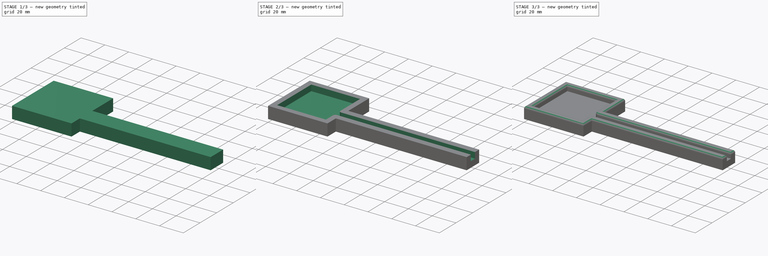
[diagram: build sequence overview — one tinted view per stage of 3, left to right]
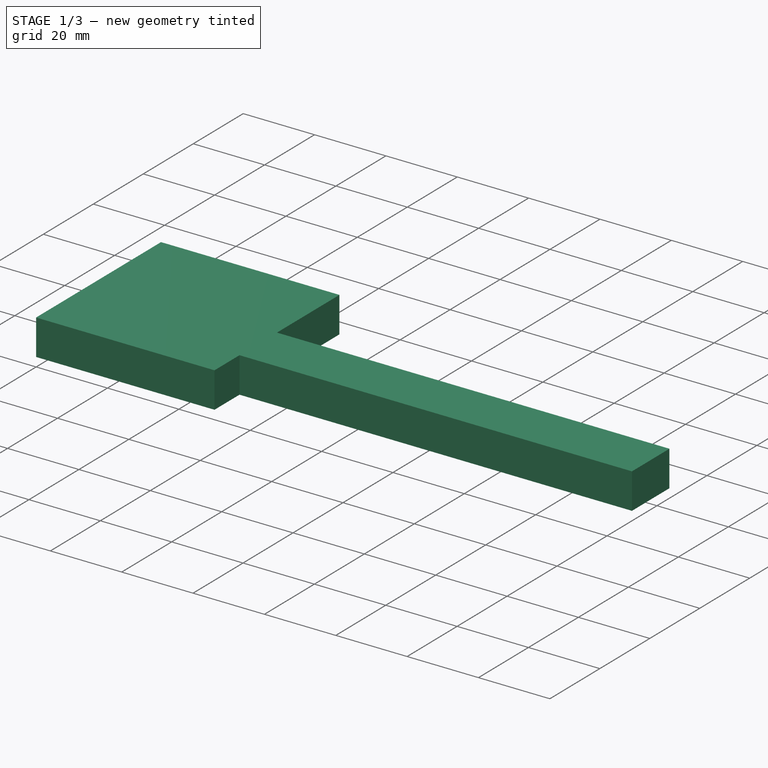
[diagram: stage 1 of 3 — iso view after this stage's code; geometry added in this stage tinted green]
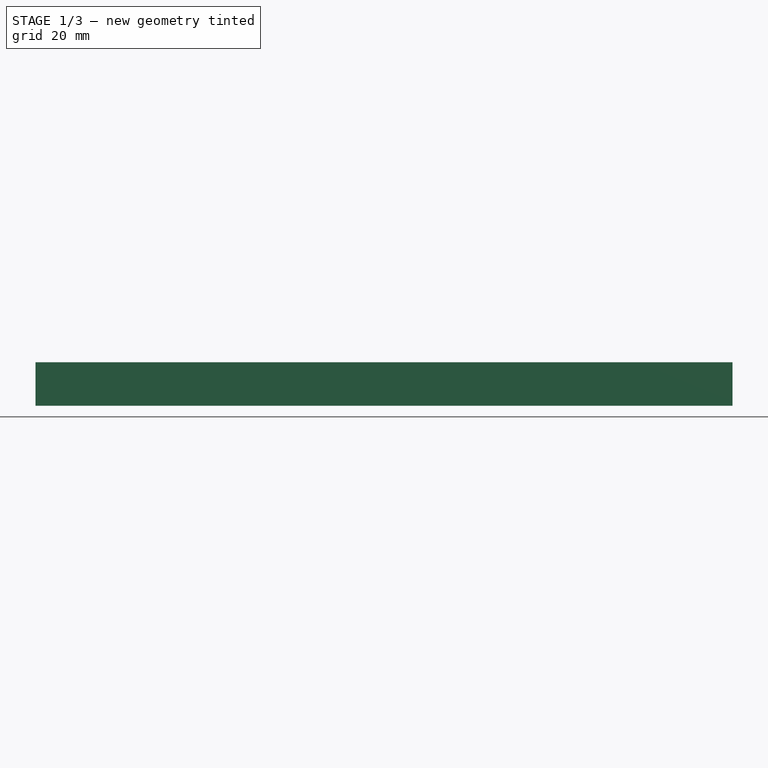
[diagram: stage 1 of 3 — front view after this stage's code; geometry added in this stage tinted green]
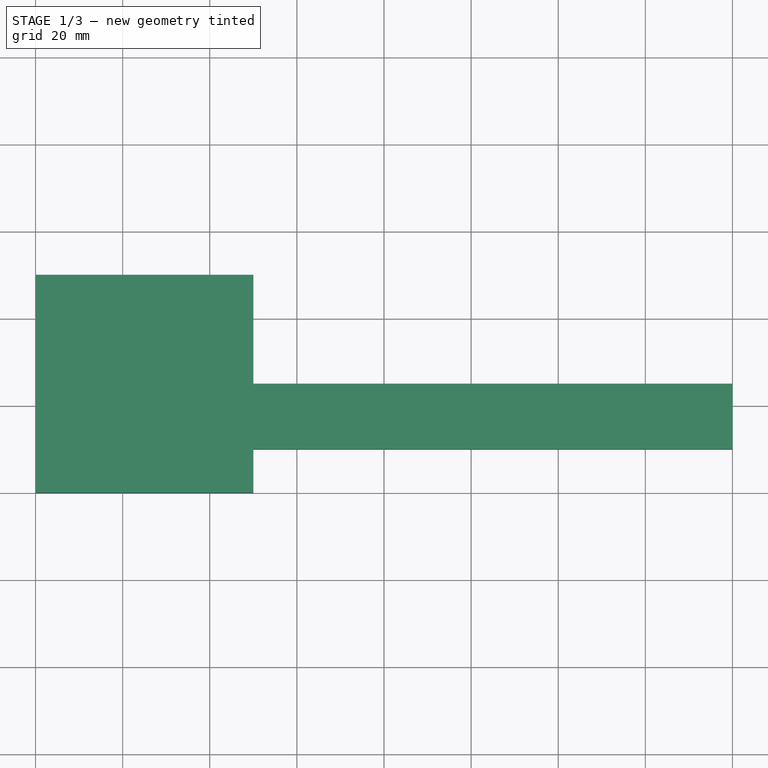
[diagram: stage 1 of 3 — top view after this stage's code; geometry added in this stage tinted green]
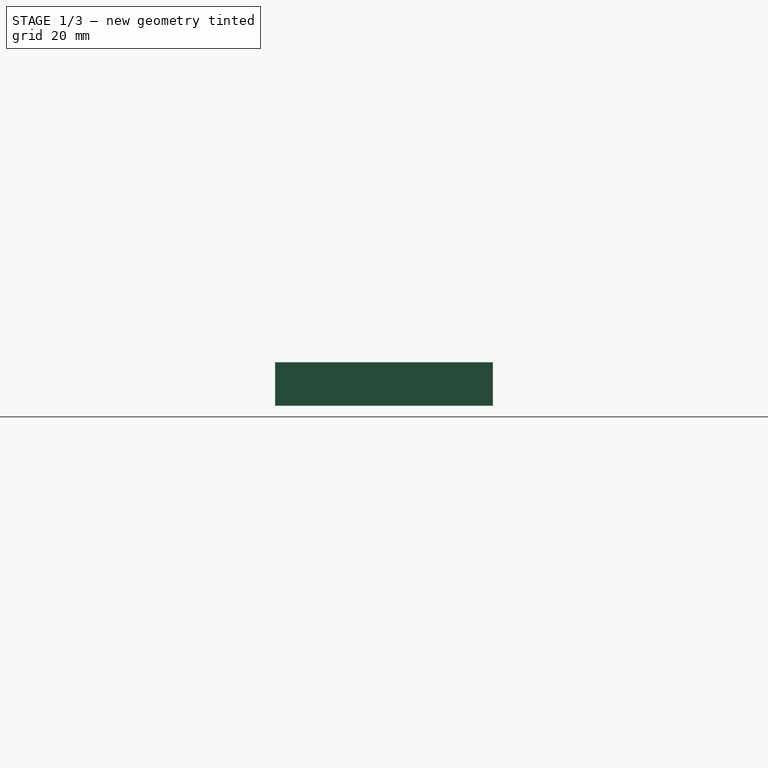
[diagram: stage 1 of 3 — right view after this stage's code; geometry added in this stage tinted green]
FCSTD DOCUMENT  (FreeCAD 0.16R6721 (Git))
Label: 40mmfan_115mm_wire_jig
License: CreativeCommons Attribution-ShareAlike
LicenseURL: http://creativecommons.org/licenses/by-sa/4.0/
objects: Sketcher::SketchObject×2, PartDesign::Pad×2, PartDesign::Fillet×2, PartDesign::Pocket×1, Part::Part2DObjectPython×1, Part::Cut×1
note: 12 computed .brp shape members not serialized (recipe doc carries the construction recipe); baked Part::Feature solids carry a one-line shape summary decoded from their .brp

FEATURE [Sketcher::SketchObject] Sketch
  sketch-geometry (8):
    g0: LineSegment StartX=0 StartY=0 StartZ=0 EndX=50 EndY=0 EndZ=0
    g1: LineSegment StartX=50 StartY=50 StartZ=0 EndX=0 EndY=50 EndZ=0
    g2: LineSegment StartX=0 StartY=50 StartZ=0 EndX=0 EndY=0 EndZ=0
    g3: LineSegment StartX=50 StartY=25 StartZ=0 EndX=160 EndY=25 EndZ=0
    g4: LineSegment StartX=160 StartY=25 StartZ=0 EndX=160 EndY=10 EndZ=0
    g5: LineSegment StartX=160 StartY=10 StartZ=0 EndX=50 EndY=10 EndZ=0
    g6: LineSegment StartX=50 StartY=50 StartZ=0 EndX=50 EndY=25 EndZ=0
    g7: LineSegment StartX=50 StartY=10 StartZ=0 EndX=50 EndY=0 EndZ=0
  constraints (23):
    c: Coincident(g1,g2)
    c: Coincident(g2,g0)
    c: Horizontal(g0)
    c: Horizontal(g1)
    c: Vertical(g2)
    c: Coincident(g-1,g0)
    c: Equal(g2,g0)
    c: DistanceX(g0,g0) = 50
    c: Coincident(g3,g4)
    c: Coincident(g4,g5)
    c: Horizontal(g3)
    c: Horizontal(g5)
    c: Vertical(g4)
    c: DistanceY(g4,g4) = 15
    c: DistanceY(g0,g5) = 10
    c: Vertical(g7)
    c: Coincident(g3,g6)
    c: Coincident(g1,g6)
    c: Coincident(g5,g7)
    c: Coincident(g0,g7)
    c: DistanceX(g3,g3) = 110
    c: Vertical(g6)
    c: Equal(g1,g2)
FEATURE [PartDesign::Pad] Pad
  Length = 10
  Length2 = 100
  Sketch = -> Sketch
  Type = 0
FEATURE [Part::Part2DObjectPython] ShapeString  # Draft 2D object (typed FeaturePython)
  FontFile = <userpath>/Desktop/Titillium-BoldUpright.otf
  Placement = pos=(5.29477,20,0) rot=(1,0,0;3.14159rad)
  Size = 4
  String = 40mmfan_115mm_wire_jig
  Tracking = 0
FEATURE [PartDesign::Pad] Pad001
  Length = 2
  Length2 = 100
  Placement = pos=(5.29477,20,0) rot=(1,0,0;3.14159rad)
  Reversed = true
  Sketch = -> ShapeString
  Type = 0
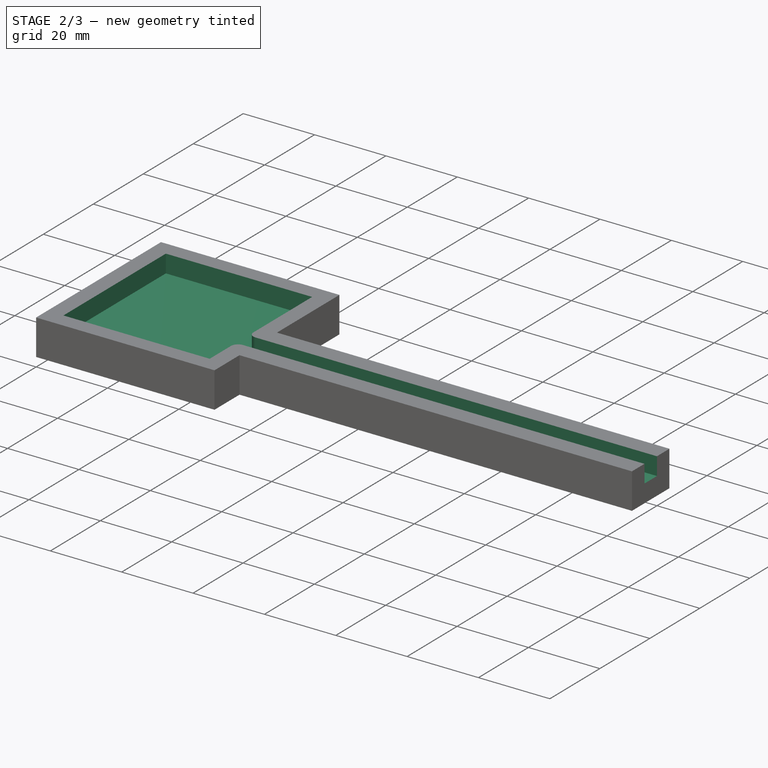
[diagram: stage 2 of 3 — iso view after this stage's code; geometry added in this stage tinted green]
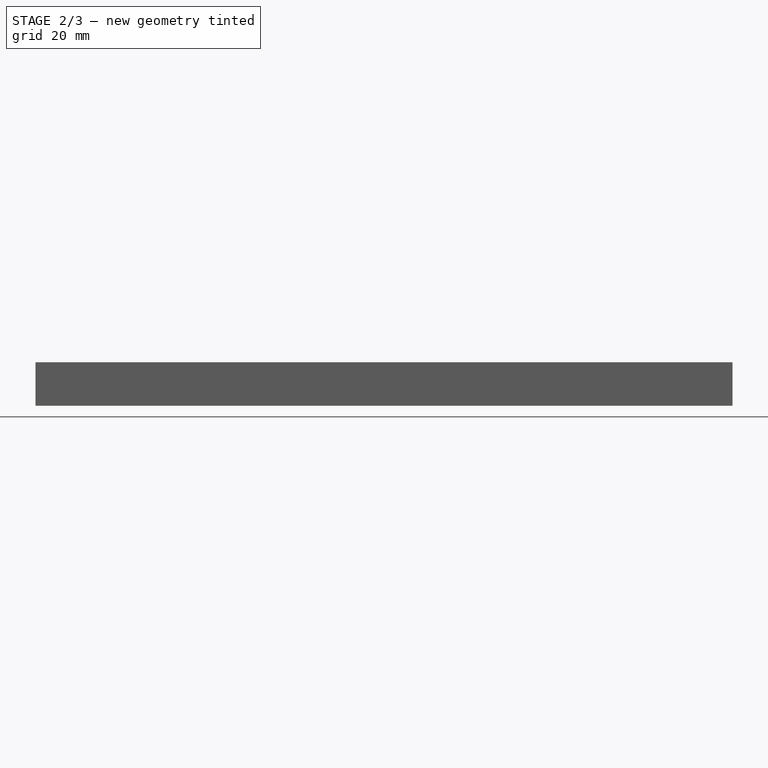
[diagram: stage 2 of 3 — front view after this stage's code; geometry added in this stage tinted green]
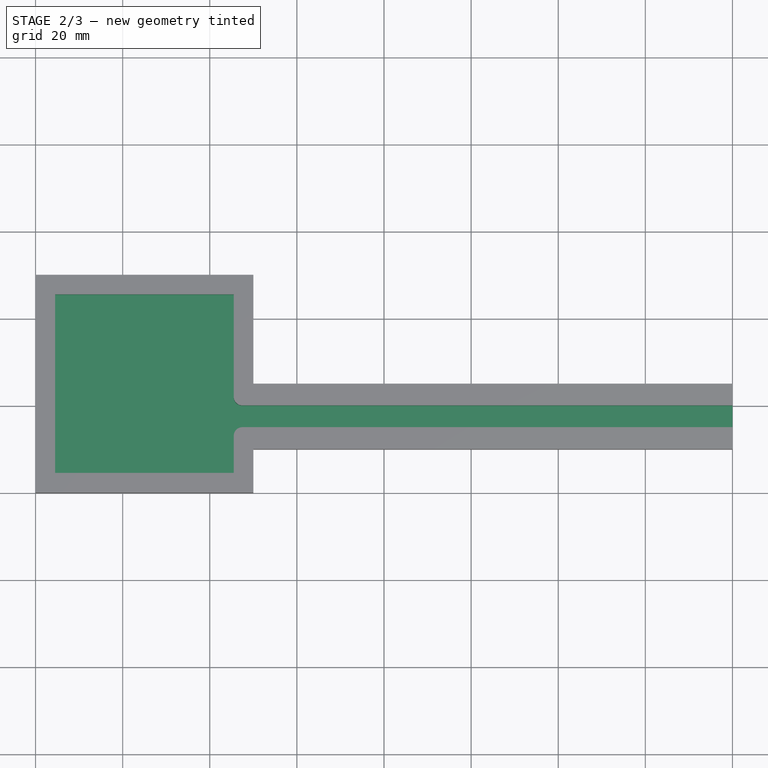
[diagram: stage 2 of 3 — top view after this stage's code; geometry added in this stage tinted green]
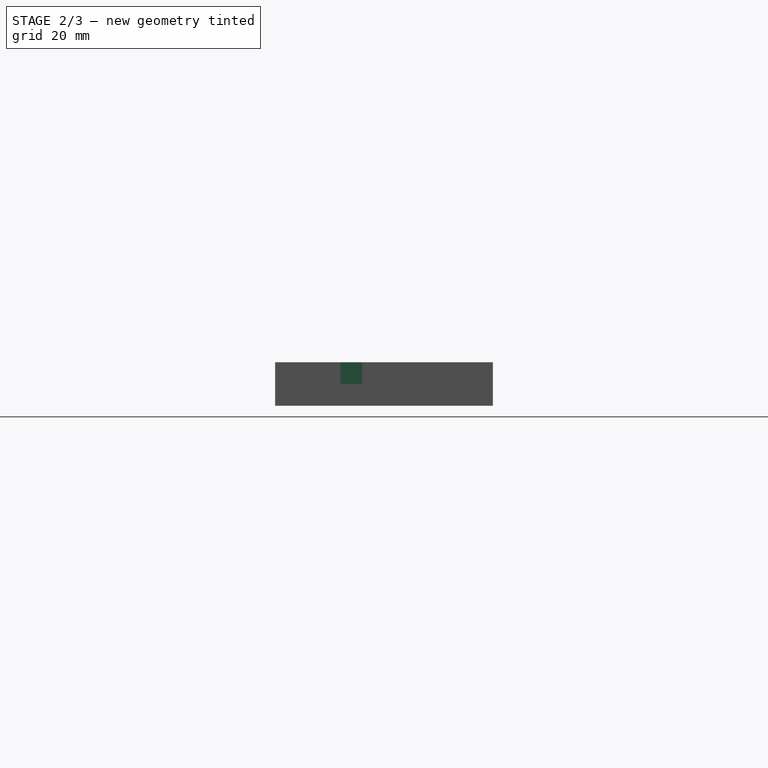
[diagram: stage 2 of 3 — right view after this stage's code; geometry added in this stage tinted green]
FEATURE [Sketcher::SketchObject] Sketch001
  ExternalGeometry = -> [Pad]
  Placement = pos=(0,0,10) rot=(0,0,1;0rad)
  Support = -> Pad [Face10]
  sketch-geometry (8):
    g0: LineSegment StartX=4.5 StartY=45.5 StartZ=0 EndX=45.5 EndY=45.5 EndZ=0
    g1: LineSegment StartX=45.5 StartY=45.5 StartZ=0 EndX=45.5 EndY=20 EndZ=0
    g2: LineSegment StartX=45.5 StartY=4.5 StartZ=0 EndX=4.5 EndY=4.5 EndZ=0
    g3: LineSegment StartX=4.5 StartY=4.5 StartZ=0 EndX=4.5 EndY=45.5 EndZ=0
    g4: LineSegment StartX=45.5 StartY=20 StartZ=0 EndX=170.5 EndY=20 EndZ=0
    g5: LineSegment StartX=170.5 StartY=20 StartZ=0 EndX=170.5 EndY=15 EndZ=0
    g6: LineSegment StartX=170.5 StartY=15 StartZ=0 EndX=45.5 EndY=15 EndZ=0
    g7: LineSegment StartX=45.5 StartY=15 StartZ=0 EndX=45.5 EndY=4.5 EndZ=0
  constraints (24):
    c: Coincident(g0,g1)
    c: Coincident(g7,g2)
    c: Coincident(g2,g3)
    c: Coincident(g3,g0)
    c: Horizontal(g0)
    c: Horizontal(g2)
    c: Vertical(g1)
    c: Vertical(g3)
    c: Coincident(g4,g5)
    c: Coincident(g5,g6)
    c: Horizontal(g4)
    c: Horizontal(g6)
    c: Vertical(g5)
    c: Coincident(g1,g4)
    c: Coincident(g7,g6)
    c: Tangent(g1,g7)
    c: Equal(g0,g3)
    c: Equal(g3,g2)
    c: DistanceY(g3,g3) = 41
    c: DistanceY(g-3,g6) = 5
    c: DistanceY(g1,g-4) = 5
    c: DistanceY(g0,g-4) = 4.5
    c: DistanceX(g0,g-4) = 4.5
    c: DistanceX(g4,g4) = 125
FEATURE [PartDesign::Pocket] Pocket
  Length = 5
  Sketch = -> Sketch001
  Type = 0
FEATURE [PartDesign::Fillet] Fillet
  Base = -> Pocket [Edge47,Edge36]
  Radius = 2
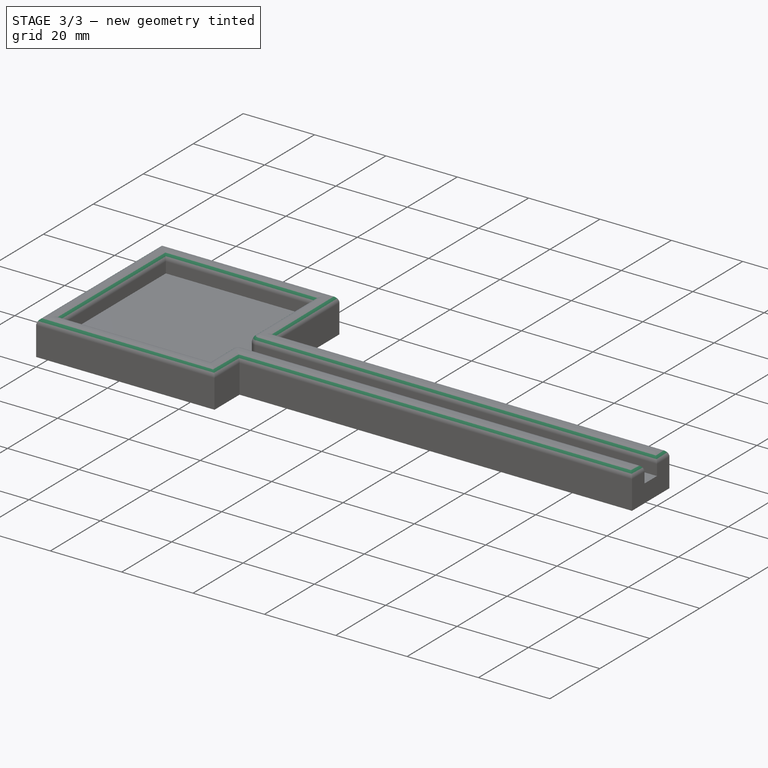
[diagram: stage 3 of 3 — iso view after this stage's code; geometry added in this stage tinted green]
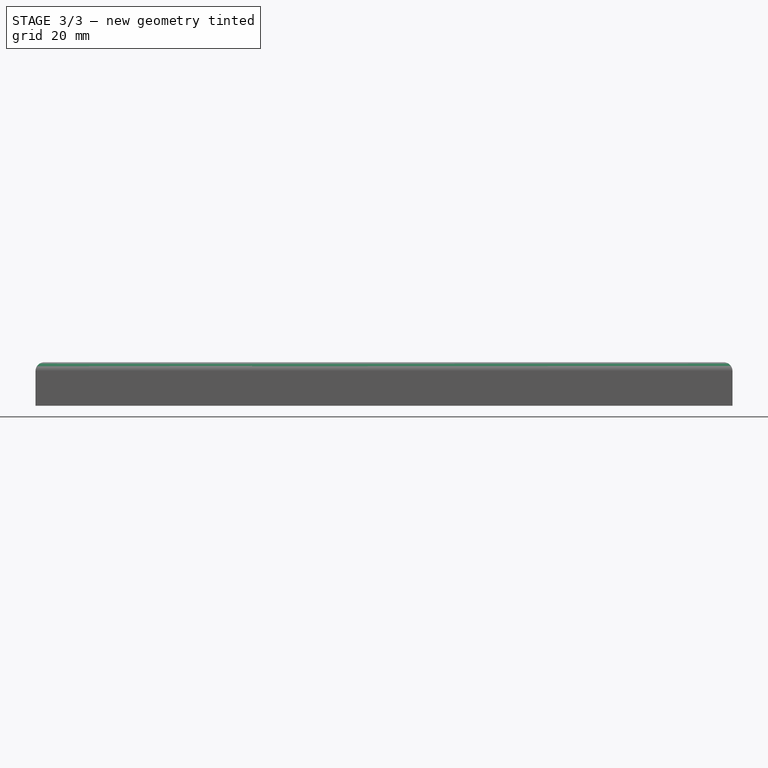
[diagram: stage 3 of 3 — front view after this stage's code; geometry added in this stage tinted green]
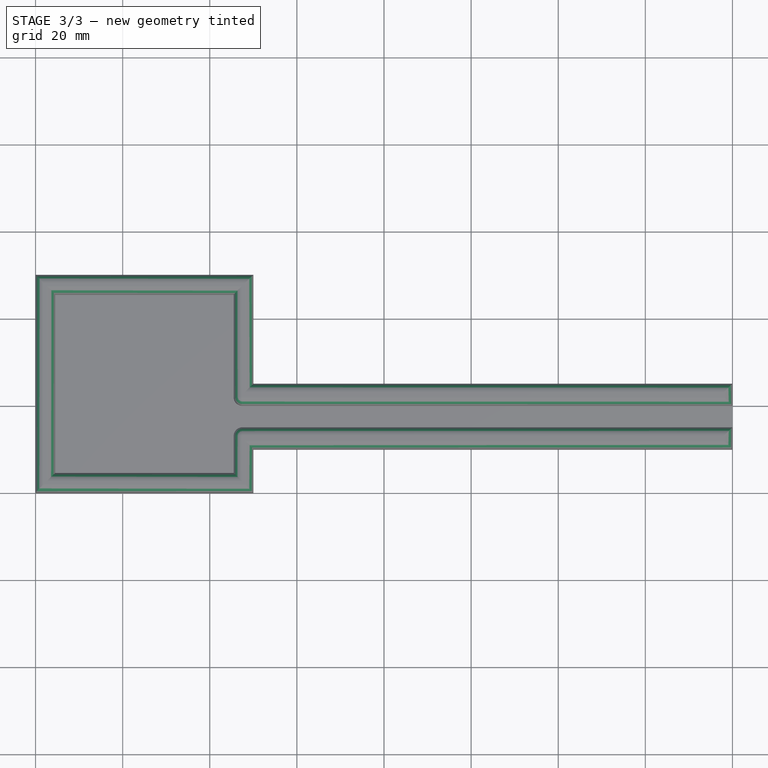
[diagram: stage 3 of 3 — top view after this stage's code; geometry added in this stage tinted green]
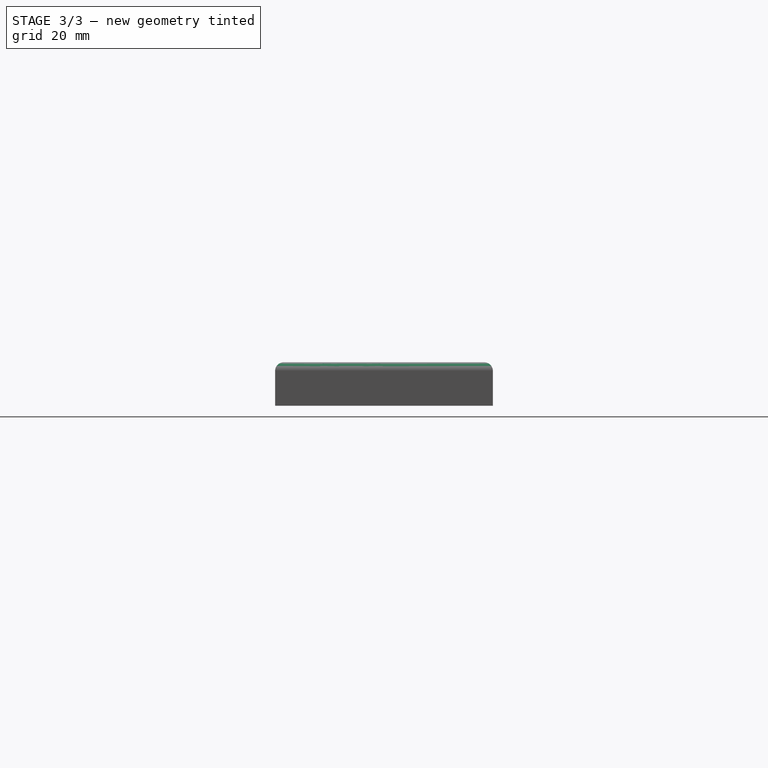
[diagram: stage 3 of 3 — right view after this stage's code; geometry added in this stage tinted green]
FEATURE [PartDesign::Fillet] Fillet001
  Base = -> Fillet [Edge1,Edge2,Edge3,Edge4,Edge5,Edge6,Edge7,Edge8,Edge9,Edge10,Edge11,Edge12,Edge13,Edge14,Edge15,Edge16,Edge17,Edge18]
  Radius = 2
FEATURE [Part::Cut] Cut
  Base = -> Fillet001
  Tool = -> Pad001
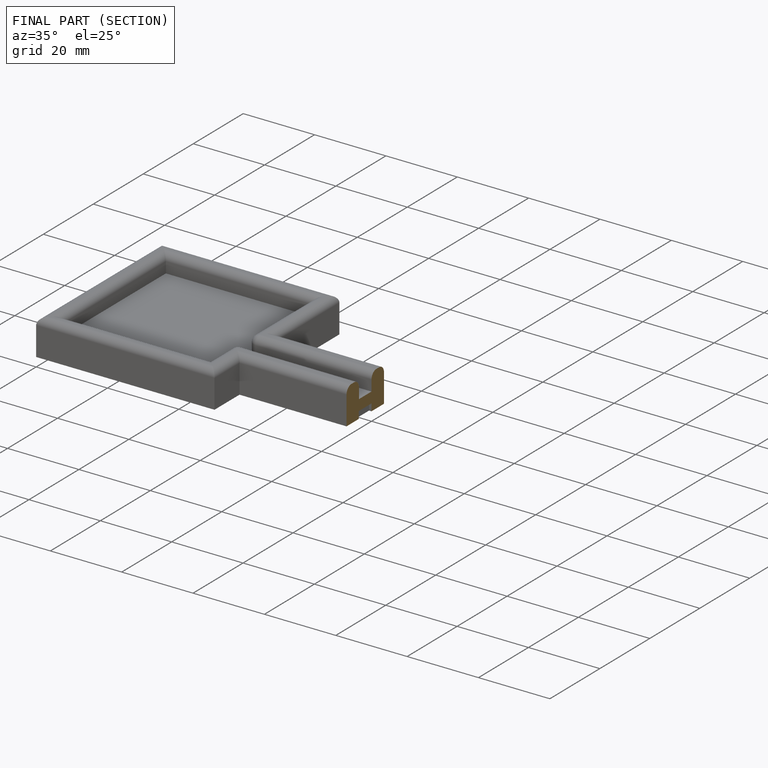
[diagram: finished part — half-section view (interior)]
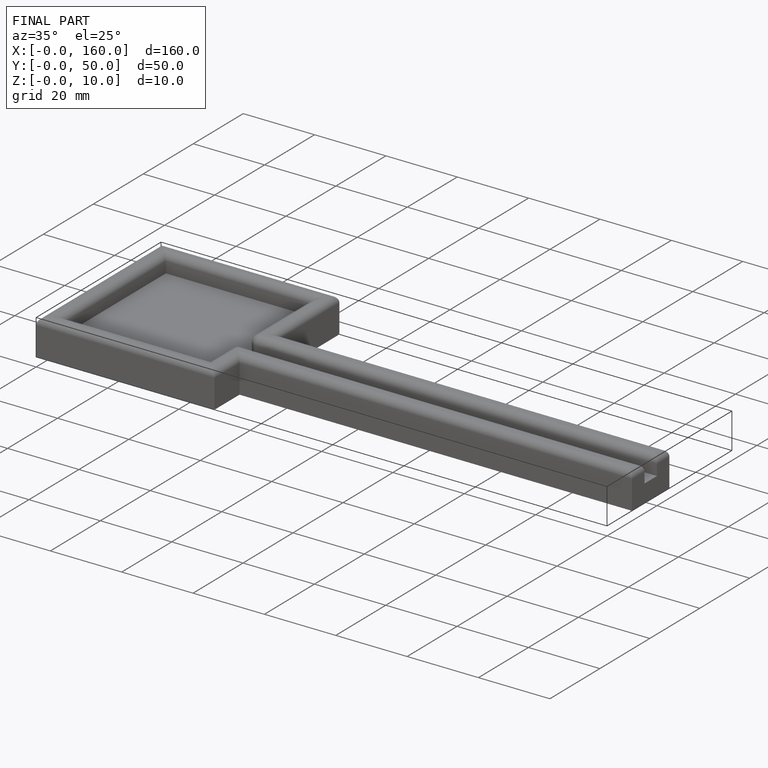
[diagram: finished part — iso view with bounding-box wireframe]
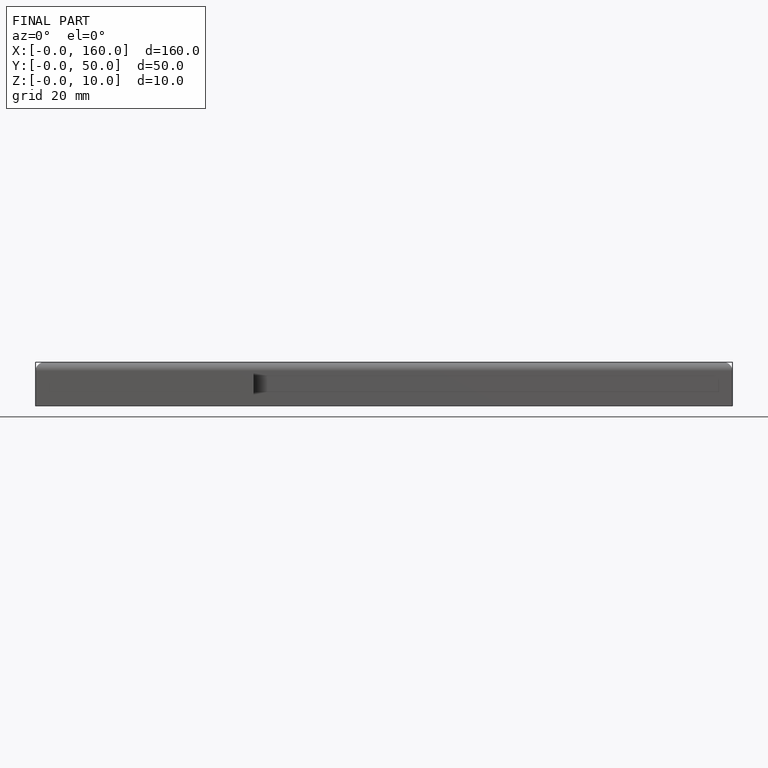
[diagram: finished part — front view with bounding-box wireframe]
